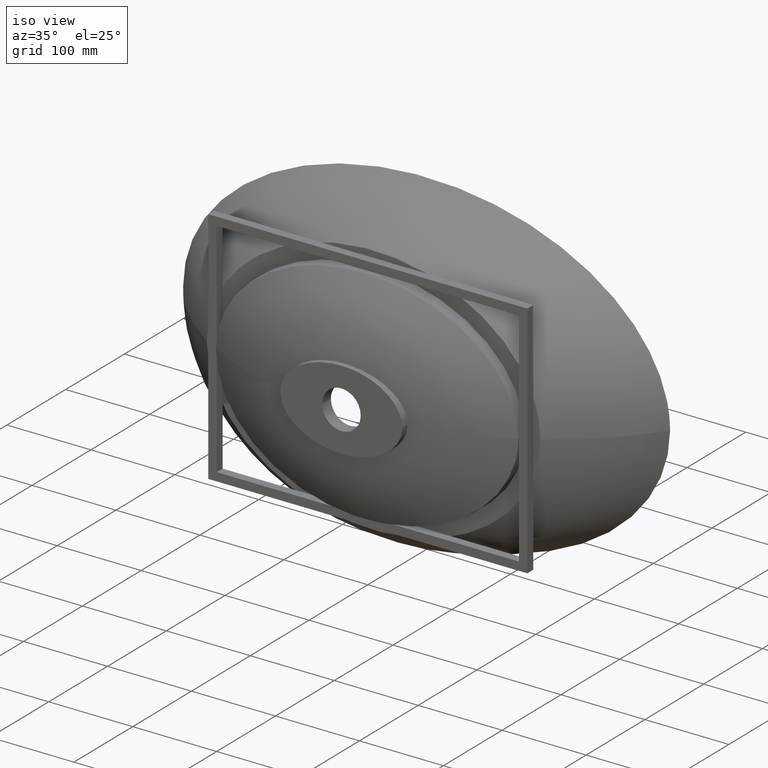
[diagram: clean part render]
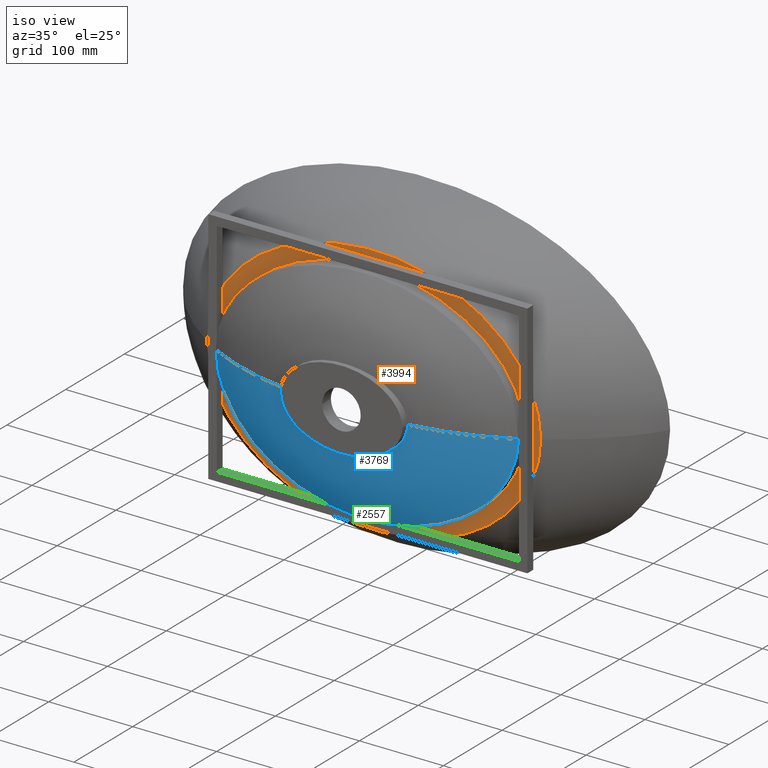
[diagram: same view with three faces highlighted in distinct colors, each labeled with its STEP entity id]
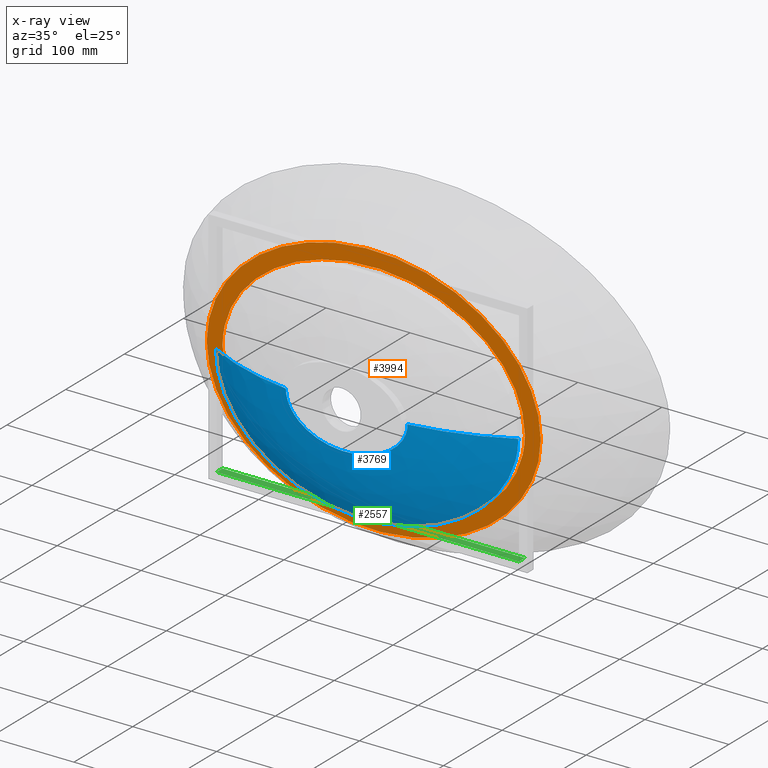
[diagram: x-ray of the same camera — body ghosted, the three highlighted faces saturated]
A machine part, iso view with three faces highlighted in distinct colors.
The next image is the same camera in x-ray (body ghosted, the three faces saturated) — at least one of them is partly hidden behind the body in this view.
Their STEP definitions:

[orange] entity #3994 — the highlighted planar face has unit normal (-0, -1, 0).
#145 = CARTESIAN_POINT ( 'NONE',  ( 90.74366534924344300, -90.00000000000004300, 115.9335179656755200 ) ) ;
#177 = VERTEX_POINT ( 'NONE', #3792 ) ;
#296 = CARTESIAN_POINT ( 'NONE',  ( 198.8502713291749700, -90.00000000000007100, -13.11443661640307200 ) ) ;
#309 = CARTESIAN_POINT ( 'NONE',  ( -100.1942375638007800, -90.00000000000007100, -131.6524531759836200 ) ) ;
#318 = EDGE_LOOP ( 'NONE', ( #459, #3659 ) ) ;
#342 = FACE_OUTER_BOUND ( 'NONE', #1409, .T. ) ;
#373 = EDGE_CURVE ( 'NONE', #1512, #177, #2418, .T. ) ;
#459 = ORIENTED_EDGE ( 'NONE', *, *, #1199, .F. ) ;
#461 = CARTESIAN_POINT ( 'NONE',  ( -90.74366534921649900, -90.00000000000005700, 115.9335179657776400 ) ) ;
#633 = CARTESIAN_POINT ( 'NONE',  ( 4.342727376950022200E-013, -90.00000000000007100, -152.3761271102559400 ) ) ;
#764 = ORIENTED_EDGE ( 'NONE', *, *, #3469, .T. ) ;
#793 = CARTESIAN_POINT ( 'NONE',  ( -179.2000957537033500, -90.00000000000002800, 15.59531744004093700 ) ) ;
#823 = CARTESIAN_POINT ( 'NONE',  ( 179.9999999999999400, -89.99999999999994300, -7.299477223001792000E-010 ) ) ;
#945 = CARTESIAN_POINT ( 'NONE',  ( 100.1942375637942600, -90.00000000000009900, -131.6524531761076000 ) ) ;
#1174 = CARTESIAN_POINT ( 'NONE',  ( 198.8502713292925000, -90.00000000000005700, -8.370892008575156100E-010 ) ) ;
#1199 = EDGE_CURVE ( 'NONE', #2915, #3721, #2828, .T. ) ;
#1272 = CARTESIAN_POINT ( 'NONE',  ( -128.7159219635021800, -90.00000000000002800, 94.49894374011435600 ) ) ;
#1401 = CARTESIAN_POINT ( 'NONE',  ( 175.7622561033006700, -89.99999999999992900, 34.68732427907950500 ) ) ;
#1409 = EDGE_LOOP ( 'NONE', ( #764, #2176 ) ) ;
#1422 = CARTESIAN_POINT ( 'NONE',  ( -198.8502713292928100, -90.00000000000000000, -1.967165492335285300 ) ) ;
#1512 = VERTEX_POINT ( 'NONE', #1174 ) ;
#1560 = CARTESIAN_POINT ( 'NONE',  ( 198.8502713292925000, -90.00000000000005700, -8.370892008575156100E-010 ) ) ;
#1580 = CARTESIAN_POINT ( 'NONE',  ( -198.7798634258439000, -90.00000000000001400, -4.590052815448874700 ) ) ;
#1731 = CARTESIAN_POINT ( 'NONE',  ( 179.9999999999999400, -89.99999999999994300, -7.299477223001792000E-010 ) ) ;
#1748 = CARTESIAN_POINT ( 'NONE',  ( 1.070667625548282000E-011, -90.00000000000008500, 134.0853951073148100 ) ) ;
#1784 = B_SPLINE_CURVE_WITH_KNOTS ( 'NONE', 3,
 ( #3313, #1422, #1580, #3845, #1904, #4203, #2229, #309, #2533, #633, #2830, #945, #3133, #4185, #2213, #296, #1560 ),
 .UNSPECIFIED., .F., .F.,
 ( 4, 1, 1, 1, 1, 1, 1, 1, 1, 1, 1, 1, 1, 1, 4 ),
 ( 0.0000000000000000000, 0.006249999999973944800, 0.008333333333298444500, 0.04166666666649233200, 0.08333333333298477400, 0.1249999999994772200, 0.1666666666659694400, 0.2083333333324619000, 0.2499999999989542300, 0.2916666666654465500, 0.3333333333319389900, 0.3749999999984313700, 0.4166666666649236900, 0.4583333333314161300, 0.5000000000000000000 ),
 .UNSPECIFIED. ) ;
#1904 = CARTESIAN_POINT ( 'NONE',  ( -192.8273946822161000, -90.00000000000000000, -41.75737275034331500 ) ) ;
#1954 = CARTESIAN_POINT ( 'NONE',  ( -180.0000000000000000, -90.00000000000002800, -7.480994990149980600E-015 ) ) ;
#1959 = B_SPLINE_CURVE_WITH_KNOTS ( 'NONE', 3,
 ( #1731, #4016, #1401, #3291, #2385, #145, #2082, #1748, #2248, #461, #1272, #3146, #3512, #793, #2676, #2971, #1954 ),
 .UNSPECIFIED., .F., .F.,
 ( 4, 1, 1, 1, 1, 1, 1, 1, 1, 1, 1, 1, 1, 1, 4 ),
 ( 0.4999999999999605900, 0.5416666666647134100, 0.5833333333315574600, 0.6249999999984017200, 0.6666666666652461000, 0.7083333333320902500, 0.7499999999999084100, 0.7916666666657787800, 0.8333333333326230500, 0.8749999999994672000, 0.9166666666663114700, 0.9583333333331558500, 0.9916666666666311700, 0.9937499999999733800, 1.000000000000000000 ),
 .UNSPECIFIED. ) ;
#2082 = CARTESIAN_POINT ( 'NONE',  ( 47.33615572003558500, -90.00000000000005700, 129.3292097853542700 ) ) ;
#2084 = CARTESIAN_POINT ( 'NONE',  ( -180.0000000000000000, -90.00000000000002800, -7.480994990149980600E-015 ) ) ;
#2176 = ORIENTED_EDGE ( 'NONE', *, *, #373, .T. ) ;
#2213 = CARTESIAN_POINT ( 'NONE',  ( 194.1564110990160000, -90.00000000000009900, -39.34330984747703000 ) ) ;
#2229 = CARTESIAN_POINT ( 'NONE',  ( -142.1354551725618500, -90.00000000000005700, -107.2656799598285700 ) ) ;
#2248 = CARTESIAN_POINT ( 'NONE',  ( -47.33615572001483700, -90.00000000000005700, 129.3292097853867200 ) ) ;
#2385 = CARTESIAN_POINT ( 'NONE',  ( 128.7159219635233600, -90.00000000000001400, 94.49894373997693700 ) ) ;
#2418 = B_SPLINE_CURVE_WITH_KNOTS ( 'NONE', 3,
 ( #3537, #3634, #3696, #3584, #3580, #3354, #3297, #3171, #3164, #3163, #3174, #3177, #3348, #3240, #3217, #3235, #3231 ),
 .UNSPECIFIED., .F., .F.,
 ( 4, 1, 1, 1, 1, 1, 1, 1, 1, 1, 1, 1, 1, 1, 4 ),
 ( 0.5000000000000000000, 0.5416666666647495000, 0.5833333333315903200, 0.6249999999984313700, 0.6666666666652724100, 0.7083333333321131200, 0.7499999999999280600, 0.7916666666657952200, 0.8333333333326362600, 0.8749999999994770800, 0.9166666666663180200, 0.9583333333331590700, 0.9916666666666318400, 0.9937499999999739300, 1.000000000000000000 ),
 .UNSPECIFIED. ) ;
#2533 = CARTESIAN_POINT ( 'NONE',  ( -52.25560404685497700, -90.00000000000007100, -146.9359933863194400 ) ) ;
#2566 = CARTESIAN_POINT ( 'NONE',  ( 179.9999999999999400, -89.99999999999994300, -7.299477223001792000E-010 ) ) ;
#2571 = CARTESIAN_POINT ( 'NONE',  ( 179.9999999998897200, -89.99999999999995700, -11.56244142729774500 ) ) ;
#2572 = CARTESIAN_POINT ( 'NONE',  ( 175.7622561026873900, -89.99999999999998600, -34.68732428039297100 ) ) ;
#2573 = DIRECTION ( 'NONE',  ( -1.000000000000000000, 1.472423135496076200E-015, -1.322880160797255900E-016 ) ) ;
#2577 = CARTESIAN_POINT ( 'NONE',  ( 157.7458273935322400, -89.99999999999997200, -66.57895139103656800 ) ) ;
#2580 = CARTESIAN_POINT ( 'NONE',  ( 128.7159219635056500, -90.00000000000000000, -94.49894374019133600 ) ) ;
#2581 = DIRECTION ( 'NONE',  ( -1.472423135496076200E-015, -1.000000000000000000, 7.069086911266522500E-029 ) ) ;
#2582 = PLANE ( 'NONE',  #3885 ) ;
#2583 = CARTESIAN_POINT ( 'NONE',  ( 90.74366534922495500, -89.99999999999998600, -115.9335179658108100 ) ) ;
#2584 = CARTESIAN_POINT ( 'NONE',  ( 47.33615572002290900, -90.00000000000001400, -129.3292097854009100 ) ) ;
#2589 = CARTESIAN_POINT ( 'NONE',  ( 1.864127346913646000E-013, -90.00000000000000000, -134.0853951073098600 ) ) ;
#2592 = CARTESIAN_POINT ( 'NONE',  ( -47.33615572002373300, -90.00000000000002800, -129.3292097853594700 ) ) ;
#2594 = CARTESIAN_POINT ( 'NONE',  ( -90.74366534922798200, -90.00000000000002800, -115.9335179657298600 ) ) ;
#2595 = CARTESIAN_POINT ( 'NONE',  ( -128.7159219635110200, -90.00000000000000000, -94.49894374007504900 ) ) ;
#2598 = CARTESIAN_POINT ( 'NONE',  ( -180.0000000000000000, -90.00000000000002800, -7.480994990149980600E-015 ) ) ;
#2601 = CARTESIAN_POINT ( 'NONE',  ( -157.7458273935386900, -90.00000000000000000, -66.57895139089103500 ) ) ;
#2606 = CARTESIAN_POINT ( 'NONE',  ( -174.5611608556976400, -90.00000000000000000, -36.81343275381481600 ) ) ;
#2607 = CARTESIAN_POINT ( 'NONE',  ( -179.2000957537047200, -90.00000000000001400, -15.59531744003995300 ) ) ;
#2611 = CARTESIAN_POINT ( 'NONE',  ( -180.0000000000000000, -90.00000000000002800, -7.480994990149980600E-015 ) ) ;
#2614 = CARTESIAN_POINT ( 'NONE',  ( -179.9364338415451000, -90.00000000000002800, -4.046854499303073300 ) ) ;
#2628 = CARTESIAN_POINT ( 'NONE',  ( -180.0000000000000900, -90.00000000000002800, -1.734366213987071200 ) ) ;
#2662 = FACE_BOUND ( 'NONE', #318, .T. ) ;
#2676 = CARTESIAN_POINT ( 'NONE',  ( -179.9364338415447300, -90.00000000000002800, 4.046854499303111500 ) ) ;
#2828 = B_SPLINE_CURVE_WITH_KNOTS ( 'NONE', 3,
 ( #2611, #2628, #2614, #2607, #2606, #2601, #2595, #2594, #2592, #2589, #2584, #2583, #2580, #2577, #2572, #2571, #2566 ),
 .UNSPECIFIED., .F., .F.,
 ( 4, 1, 1, 1, 1, 1, 1, 1, 1, 1, 1, 1, 1, 1, 4 ),
 ( 0.0000000000000000000, 0.006249999999973452100, 0.008333333333297787000, 0.04166666666648904900, 0.08333333333297821000, 0.1249999999994673700, 0.1666666666659563100, 0.2083333333324454700, 0.2499999999989345200, 0.2916666666654235700, 0.3333333333319127300, 0.3749999999984018300, 0.4166666666648908300, 0.4583333333313799900, 0.4999999999999605900 ),
 .UNSPECIFIED. ) ;
#2830 = CARTESIAN_POINT ( 'NONE',  ( 52.25560404685331400, -90.00000000000009900, -146.9359933863829000 ) ) ;
#2915 = VERTEX_POINT ( 'NONE', #2084 ) ;
#2971 = CARTESIAN_POINT ( 'NONE',  ( -179.9999999999999400, -90.00000000000002800, 1.734366213987025700 ) ) ;
#3133 = CARTESIAN_POINT ( 'NONE',  ( 142.1354551725503100, -90.00000000000011400, -107.2656799600066900 ) ) ;
#3146 = CARTESIAN_POINT ( 'NONE',  ( -157.7458273935326900, -90.00000000000004300, 66.57895139091354500 ) ) ;
#3163 = CARTESIAN_POINT ( 'NONE',  ( -100.1942375637760700, -90.00000000000000000, 131.6524531760568900 ) ) ;
#3164 = CARTESIAN_POINT ( 'NONE',  ( -52.25560404683584200, -90.00000000000001400, 146.9359933863612800 ) ) ;
#3171 = CARTESIAN_POINT ( 'NONE',  ( 2.312147518967068700E-011, -90.00000000000005700, 152.3761271102635800 ) ) ;
#3174 = CARTESIAN_POINT ( 'NONE',  ( -142.1354551725428300, -89.99999999999998600, 107.2656799598889300 ) ) ;
#3177 = CARTESIAN_POINT ( 'NONE',  ( -174.2211648423273400, -90.00000000000001400, 75.55425340137570300 ) ) ;
#3217 = CARTESIAN_POINT ( 'NONE',  ( -198.7798634258431300, -90.00000000000000000, 4.590052815448948400 ) ) ;
#3231 = CARTESIAN_POINT ( 'NONE',  ( -198.8502713292926700, -90.00000000000000000, -9.974659986866640800E-015 ) ) ;
#3235 = CARTESIAN_POINT ( 'NONE',  ( -198.8502713292925300, -90.00000000000000000, 1.967165492335230600 ) ) ;
#3240 = CARTESIAN_POINT ( 'NONE',  ( -197.9643735094901400, -90.00000000000001400, 17.68882759955771200 ) ) ;
#3291 = CARTESIAN_POINT ( 'NONE',  ( 157.7458273935470500, -89.99999999999998600, 66.57895139075144200 ) ) ;
#3297 = CARTESIAN_POINT ( 'NONE',  ( 52.25560404688068400, -90.00000000000005700, 146.9359933863115400 ) ) ;
#3313 = CARTESIAN_POINT ( 'NONE',  ( -198.8502713292926700, -90.00000000000000000, -9.974659986866640800E-015 ) ) ;
#3348 = CARTESIAN_POINT ( 'NONE',  ( -192.8273946822091900, -90.00000000000000000, 41.75737275035364600 ) ) ;
#3354 = CARTESIAN_POINT ( 'NONE',  ( 100.1942375638341200, -90.00000000000005700, 131.6524531759004600 ) ) ;
#3423 = EDGE_CURVE ( 'NONE', #3721, #2915, #1959, .T. ) ;
#3469 = EDGE_CURVE ( 'NONE', #177, #1512, #1784, .T. ) ;
#3512 = CARTESIAN_POINT ( 'NONE',  ( -174.5611608556944800, -90.00000000000002800, 36.81343275382155900 ) ) ;
#3537 = CARTESIAN_POINT ( 'NONE',  ( 198.8502713292925000, -90.00000000000005700, -8.370892008575156100E-010 ) ) ;
#3580 = CARTESIAN_POINT ( 'NONE',  ( 142.1354551725884800, -90.00000000000004300, 107.2656799596783900 ) ) ;
#3584 = CARTESIAN_POINT ( 'NONE',  ( 174.2211648423582600, -90.00000000000004300, 75.55425340112741100 ) ) ;
#3634 = CARTESIAN_POINT ( 'NONE',  ( 198.8502713294099900, -90.00000000000005700, 13.11443661472892900 ) ) ;
#3659 = ORIENTED_EDGE ( 'NONE', *, *, #3423, .F. ) ;
#3696 = CARTESIAN_POINT ( 'NONE',  ( 194.1564110996812100, -90.00000000000002800, 39.34330984591894500 ) ) ;
#3721 = VERTEX_POINT ( 'NONE', #823 ) ;
#3792 = CARTESIAN_POINT ( 'NONE',  ( -198.8502713292926700, -90.00000000000000000, -9.974659986866640800E-015 ) ) ;
#3845 = CARTESIAN_POINT ( 'NONE',  ( -197.9643735094931000, -90.00000000000000000, -17.68882759955619800 ) ) ;
#3885 = AXIS2_PLACEMENT_3D ( 'NONE', #2598, #2581, #2573 ) ;
#3994 = ADVANCED_FACE ( 'NONE', ( #342, #2662 ), #2582, .T. ) ;
#4016 = CARTESIAN_POINT ( 'NONE',  ( 180.0000000001101300, -89.99999999999994300, 11.56244142585975400 ) ) ;
#4185 = CARTESIAN_POINT ( 'NONE',  ( 174.2211648423262900, -90.00000000000009900, -75.55425340156405400 ) ) ;
#4203 = CARTESIAN_POINT ( 'NONE',  ( -174.2211648423401900, -90.00000000000002800, -75.55425340134119900 ) ) ;

[blue] entity #3769 — the highlighted face is a freeform B-spline surface patch.
#4 = VERTEX_POINT ( 'NONE', #3772 ) ;
#14 = CARTESIAN_POINT ( 'NONE',  ( -21.60535148392922300, -138.2254856259216100, -53.88225570148242800 ) ) ;
#25 = CARTESIAN_POINT ( 'NONE',  ( -63.64938807459023500, -136.7659678258151800, -24.03620646583359700 ) ) ;
#28 = CARTESIAN_POINT ( 'NONE',  ( 88.15250290320129500, -132.5966441120052900, 35.44585711085374400 ) ) ;
#41 = CARTESIAN_POINT ( 'NONE',  ( 86.34983041536298700, -109.4724330613113900, 110.4652736398576800 ) ) ;
#49 = B_SPLINE_CURVE_WITH_KNOTS ( 'NONE', 3,
 ( #289, #283, #1568, #3427, #578, #25, #3480, #242, #3804, #3108, #3931, #3903, #1147, #3079, #191, #2900, #3664 ),
 .UNSPECIFIED., .F., .F.,
 ( 4, 1, 1, 1, 1, 1, 1, 1, 1, 1, 1, 1, 1, 1, 4 ),
 ( 0.0000000000000000000, 0.006249999999973827700, 0.008333333333298288300, 0.04166666666649154700, 0.08333333333298320600, 0.1249999999994748800, 0.1666666666659663000, 0.2083333333324579900, 0.2499999999989495300, 0.2916666666654410500, 0.3333333333319327100, 0.3749999999984243200, 0.4166666666649158600, 0.4583333333314075200, 0.4999999999999905600 ),
 .UNSPECIFIED. ) ;
#51 = CARTESIAN_POINT ( 'NONE',  ( 21.60535148391156200, -138.2254856259198200, 53.88225570148301100 ) ) ;
#55 = CARTESIAN_POINT ( 'NONE',  ( -41.38091649032791300, -137.5137336733139900, -48.38538487928600800 ) ) ;
#69 = CARTESIAN_POINT ( 'NONE',  ( 150.2856632549772700, -106.9341796959233600, -63.36830748782477900 ) ) ;
#109 = CARTESIAN_POINT ( 'NONE',  ( -179.9356681408749200, -101.1438888113056700, -4.034476564383267000 ) ) ;
#117 = CARTESIAN_POINT ( 'NONE',  ( 41.38091649030512500, -137.5137336733003500, 48.38538487929160700 ) ) ;
#124 = CARTESIAN_POINT ( 'NONE',  ( 45.00450705813410900, -110.4595315923392600, 123.3261866611201800 ) ) ;
#173 = CARTESIAN_POINT ( 'NONE',  ( 5.996294596105164400E-015, -136.1064892676519100, -71.25318917190452300 ) ) ;
#191 = CARTESIAN_POINT ( 'NONE',  ( 70.82446541845511900, -136.1580643484143700, -12.55627765287975200 ) ) ;
#205 = CARTESIAN_POINT ( 'NONE',  ( 86.34983041527144100, -109.4724330613621200, -110.4652736400591700 ) ) ;
#218 = CARTESIAN_POINT ( 'NONE',  ( 19.16198527001705500, -138.9370516737609500, -46.40284726502926600 ) ) ;
#231 = CARTESIAN_POINT ( 'NONE',  ( 70.82446541857571300, -136.1580643484041700, -12.55627765268680400 ) ) ;
#242 = CARTESIAN_POINT ( 'NONE',  ( -36.68287104352781100, -138.3291481963266000, -41.70352527308491400 ) ) ;
#255 = CARTESIAN_POINT ( 'NONE',  ( -21.60535148394230700, -138.2254856259324100, 53.88225570147972100 ) ) ;
#261 = CARTESIAN_POINT ( 'NONE',  ( -81.89255720789920200, -134.7684047132744900, -3.198396408832238100E-015 ) ) ;
#276 = CARTESIAN_POINT ( 'NONE',  ( 70.82446541857741800, -136.1580643483956100, 12.55627765275476000 ) ) ;
#283 = CARTESIAN_POINT ( 'NONE',  ( -72.49999999999988600, -135.9843776405653600, -0.6278138826359834800 ) ) ;
#289 = CARTESIAN_POINT ( 'NONE',  ( -72.50000000000007100, -135.9843776405655800, -4.174178364069192100E-015 ) ) ;
#335 = CARTESIAN_POINT ( 'NONE',  ( 98.20338191811966100, -131.7191828231378300, -18.47949401132816800 ) ) ;
#346 = CARTESIAN_POINT ( 'NONE',  ( -2.435050329329200600E-011, -139.1975817355071600, 48.04857636748078400 ) ) ;
#360 = CARTESIAN_POINT ( 'NONE',  ( -127.9985263868448900, -123.9565087073186600, -6.071532165918824800E-015 ) ) ;
#376 = CARTESIAN_POINT ( 'NONE',  ( -154.5669731667401000, -113.9511353889949800, -3.457331393691176500 ) ) ;
#380 = CARTESIAN_POINT ( 'NONE',  ( 122.5378988818123400, -108.2033063785809200, 89.97936883418150000 ) ) ;
#389 = CARTESIAN_POINT ( 'NONE',  ( -166.4376370003652400, -106.0128877336269100, 35.01273231288230600 ) ) ;
#400 = CARTESIAN_POINT ( 'NONE',  ( -63.64938807460386300, -136.7659678258306400, 24.03620646582685800 ) ) ;
#411 = CARTESIAN_POINT ( 'NONE',  ( -157.5619450238705800, -102.3704272196283800, 66.43164022772515400 ) ) ;
#435 = CARTESIAN_POINT ( 'NONE',  ( -135.3730003061997100, -115.2689547828959200, -56.92026854610269700 ) ) ;
#449 = CARTESIAN_POINT ( 'NONE',  ( -86.34983041522961900, -109.4724330613620100, 110.4652736400097800 ) ) ;
#465 = CARTESIAN_POINT ( 'NONE',  ( 47.17970821334883200, -105.7888731736392000, 129.2945919006047000 ) ) ;
#485 = CARTESIAN_POINT ( 'NONE',  ( -179.1908812512578500, -101.1903796762784100, -15.54789838681193900 ) ) ;
#501 = CARTESIAN_POINT ( 'NONE',  ( -71.94086093412588000, -133.7248086263591100, 50.29314149079644400 ) ) ;
#507 = EDGE_CURVE ( 'NONE', #1509, #4, #3990, .T. ) ;
#529 = CARTESIAN_POINT ( 'NONE',  ( -171.6801030269172400, -105.6650530131687200, -1.105886215935214500E-014 ) ) ;
#557 = CARTESIAN_POINT ( 'NONE',  ( -70.34612692898360800, -136.1985912468998400, 13.32160624025910200 ) ) ;
#578 = CARTESIAN_POINT ( 'NONE',  ( -70.34612692897626100, -136.1985912468909400, -13.32160624026112900 ) ) ;
#641 = CARTESIAN_POINT ( 'NONE',  ( -79.44466684816913500, -135.0192125441876700, -15.42646999813209300 ) ) ;
#668 = CARTESIAN_POINT ( 'NONE',  ( -36.68287104352781100, -138.3291481963266000, -41.70352527308491400 ) ) ;
#674 = CARTESIAN_POINT ( 'NONE',  ( -100.5298655502836000, -131.4722401461128800, 2.155940967984629100 ) ) ;
#708 = CARTESIAN_POINT ( 'NONE',  ( -36.68287104355391600, -138.3291481963461800, 41.70352527307059600 ) ) ;
#711 = CARTESIAN_POINT ( 'NONE',  ( -112.1113420490171300, -125.2498409302742700, 46.47062048620694700 ) ) ;
#724 = CARTESIAN_POINT ( 'NONE',  ( -72.47486698127835300, -135.9869829411826200, -1.464899059483953500 ) ) ;
#738 = CARTESIAN_POINT ( 'NONE',  ( -2.903546014045522800E-013, -138.5305221770429400, -55.81602085519583800 ) ) ;
#753 = CARTESIAN_POINT ( 'NONE',  ( 157.5619450238681100, -102.3704272196435200, -66.43164022791916100 ) ) ;
#766 = CARTESIAN_POINT ( 'NONE',  ( 124.9677936145221800, -124.2439158679646000, 24.20476834532659200 ) ) ;
#782 = CARTESIAN_POINT ( 'NONE',  ( 77.79332171327921200, -117.9134084161943700, -99.20889853072530700 ) ) ;
#810 = CARTESIAN_POINT ( 'NONE',  ( -170.9087083654350200, -105.7172282212332800, -14.83126853532561300 ) ) ;
#828 = CARTESIAN_POINT ( 'NONE',  ( -171.6187717226740100, -105.6692834354452700, 3.848522310046162100 ) ) ;
#841 = CARTESIAN_POINT ( 'NONE',  ( -77.79332171329144800, -117.9134084161610500, -99.20889853062269000 ) ) ;
#851 = CARTESIAN_POINT ( 'NONE',  ( -154.6221291195640200, -113.9467279662737000, -1.593777193553691500E-014 ) ) ;
#865 = CARTESIAN_POINT ( 'NONE',  ( -81.53271891947571200, -134.8060258879144700, 6.536309777860259000 ) ) ;
#904 = CARTESIAN_POINT ( 'NONE',  ( -79.44466684817392400, -135.0192125441980400, 15.42646999813140400 ) ) ;
#920 = CARTESIAN_POINT ( 'NONE',  ( 26.46398956459173800, -135.7304344295595200, -68.74736783313875300 ) ) ;
#932 = CARTESIAN_POINT ( 'NONE',  ( 58.67074392697237100, -136.5986240199935400, -39.49986506585607800 ) ) ;
#942 = CARTESIAN_POINT ( 'NONE',  ( 71.84934949014086700, -135.6835143666455700, -27.85504080437835800 ) ) ;
#966 = CARTESIAN_POINT ( 'NONE',  ( -72.18347257089364200, -136.0165096815169600, 5.644943199525521000 ) ) ;
#978 = CARTESIAN_POINT ( 'NONE',  ( -100.5652942350373800, -131.4684795977307800, -0.9239747005648708500 ) ) ;
#1004 = CARTESIAN_POINT ( 'NONE',  ( -128.4670743710578300, -103.6010677630857800, 94.33018502803619800 ) ) ;
#1022 = CARTESIAN_POINT ( 'NONE',  ( -179.9999999999999700, -101.1397866761616100, -6.071532165918824800E-015 ) ) ;
#1024 = CARTESIAN_POINT ( 'NONE',  ( -64.45463552820265800, -127.8365053761614500, 80.94689134798352400 ) ) ;
#1061 = CARTESIAN_POINT ( 'NONE',  ( 90.52644380357804700, -104.8317083064899300, 115.8088161287509100 ) ) ;
#1089 = CARTESIAN_POINT ( 'NONE',  ( -171.6801030269169000, -105.6650530131690600, 1.649366704305464700 ) ) ;
#1120 = CARTESIAN_POINT ( 'NONE',  ( -150.2856632550093300, -106.9341796958825900, -63.36830748760800700 ) ) ;
#1131 = CARTESIAN_POINT ( 'NONE',  ( -97.53332331712510900, -131.7776802423995500, 19.61058488460453800 ) ) ;
#1147 = CARTESIAN_POINT ( 'NONE',  ( 51.99666549677751000, -137.5475580110951900, -34.06976087436132200 ) ) ;
#1149 = VERTEX_POINT ( 'NONE', #2635 ) ;
#1151 = CARTESIAN_POINT ( 'NONE',  ( -77.79332171324549000, -117.9134084161944700, 99.20889853068348400 ) ) ;
#1163 = CARTESIAN_POINT ( 'NONE',  ( -33.60797833836107900, -128.8424304384200000, -90.32211386168090400 ) ) ;
#1170 = CARTESIAN_POINT ( 'NONE',  ( -174.5012584337427200, -101.4770733436339900, 36.70458853025227300 ) ) ;
#1173 = CARTESIAN_POINT ( 'NONE',  ( 135.3730003061736800, -115.2689547829383800, -56.92026854628715400 ) ) ;
#1185 = CARTESIAN_POINT ( 'NONE',  ( -88.15250290320089700, -132.5966441120270900, -35.44585711089389700 ) ) ;
#1191 = CARTESIAN_POINT ( 'NONE',  ( -81.89255720789920200, -134.7684047132744900, -3.198396408832238100E-015 ) ) ;
#1203 = CARTESIAN_POINT ( 'NONE',  ( -81.86397669252950500, -134.7714550787850700, -1.696183409729884200 ) ) ;
#1235 = CARTESIAN_POINT ( 'NONE',  ( 79.98718951660174500, -134.9717624140133100, 14.53871494055374200 ) ) ;
#1250 = CARTESIAN_POINT ( 'NONE',  ( 71.84934949011896800, -135.6835143665985600, 27.85504080440743700 ) ) ;
#1295 = CARTESIAN_POINT ( 'NONE',  ( -179.9999999999999700, -101.1397866761616100, -6.071532165918824800E-015 ) ) ;
#1327 = CARTESIAN_POINT ( 'NONE',  ( -71.94086093412657600, -133.7248086263307100, -50.29314149078489000 ) ) ;
#1335 = CARTESIAN_POINT ( 'NONE',  ( 7.528016575679785500E-013, -119.3825493235422200, -114.8573587976452300 ) ) ;
#1344 = CARTESIAN_POINT ( 'NONE',  ( 112.1113420490162400, -125.2498409302903200, -46.47062048630795100 ) ) ;
#1357 = CARTESIAN_POINT ( 'NONE',  ( 73.33776729071166800, -135.8975342866483800, 3.564370162083350400E-011 ) ) ;
#1362 = ORIENTED_EDGE ( 'NONE', *, *, #2346, .T. ) ;
#1372 = CARTESIAN_POINT ( 'NONE',  ( 5.312180101139441200E-011, -110.8825738199245000, 127.9110200387975900 ) ) ;
#1390 = CARTESIAN_POINT ( 'NONE',  ( -19.16198527001537500, -138.9370516737502300, -46.40284726504175000 ) ) ;
#1395 = CARTESIAN_POINT ( 'NONE',  ( 2.341912223038616900E-011, -129.2735411794084300, 93.65503709939046900 ) ) ;
#1412 = CARTESIAN_POINT ( 'NONE',  ( -174.5012584337600000, -101.4770733436199600, -36.70458853024163700 ) ) ;
#1444 = CARTESIAN_POINT ( 'NONE',  ( -90.52644380349538300, -104.8317083065081200, -115.8088161288365800 ) ) ;
#1456 = CARTESIAN_POINT ( 'NONE',  ( 91.44612436927174300, -126.5431731531628800, 65.96668315028516400 ) ) ;
#1484 = CARTESIAN_POINT ( 'NONE',  ( 4.287692068153241800E-011, -119.3825493235437300, 114.8573587976518000 ) ) ;
#1509 = VERTEX_POINT ( 'NONE', #2663 ) ;
#1527 = CARTESIAN_POINT ( 'NONE',  ( -100.5298655502836200, -131.4722401461114600, -2.155940967984647300 ) ) ;
#1538 = CARTESIAN_POINT ( 'NONE',  ( -91.44612436924465700, -126.5431731531875800, -65.96668315036576800 ) ) ;
#1568 = CARTESIAN_POINT ( 'NONE',  ( -72.47486698127835300, -135.9869829411826200, -1.464899059483953500 ) ) ;
#1591 = CARTESIAN_POINT ( 'NONE',  ( 21.60535148393029200, -138.2254856259341400, -53.88225570147819400 ) ) ;
#1616 = CARTESIAN_POINT ( 'NONE',  ( -72.50000000000022700, -135.9843776405657800, 0.6278138826359641600 ) ) ;
#1632 = CARTESIAN_POINT ( 'NONE',  ( -26.46398956459119100, -135.7304344295574500, 68.74736783313507300 ) ) ;
#1646 = CARTESIAN_POINT ( 'NONE',  ( 150.2856632550509300, -106.9341796958582200, 63.36830748740003800 ) ) ;
#1656 = CARTESIAN_POINT ( 'NONE',  ( -127.9985263868448900, -123.9565087073186600, -6.071532165918824800E-015 ) ) ;
#1659 = ORIENTED_EDGE ( 'NONE', *, *, #507, .T. ) ;
#1660 = CARTESIAN_POINT ( 'NONE',  ( -110.3891451521824100, -116.5911815995605100, 80.81863150231049500 ) ) ;
#1672 = CARTESIAN_POINT ( 'NONE',  ( -72.47486698127914900, -135.9869829411835800, 1.464899059483908600 ) ) ;
#1676 = CARTESIAN_POINT ( 'NONE',  ( 157.5619450239476900, -102.3704272195802900, 66.43164022746951500 ) ) ;
#1700 = CARTESIAN_POINT ( 'NONE',  ( -157.5619450239026400, -102.3704272196040300, -66.43164022768967000 ) ) ;
#1727 = CARTESIAN_POINT ( 'NONE',  ( -124.1106968434843300, -124.3109775387993100, 25.68915848814413000 ) ) ;
#1789 = CARTESIAN_POINT ( 'NONE',  ( 129.5138927730060300, -123.8128051269922500, -9.726918454458756300E-011 ) ) ;
#1835 = CARTESIAN_POINT ( 'NONE',  ( 41.38091649033233200, -137.5137336733369900, -48.38538487927775100 ) ) ;
#1847 = CARTESIAN_POINT ( 'NONE',  ( -72.50000000000007100, -135.9843776405655800, -4.174178364069192100E-015 ) ) ;
#1865 = CARTESIAN_POINT ( 'NONE',  ( -150.2856632549796800, -106.9341796959076700, 63.36830748764153800 ) ) ;
#1899 = CARTESIAN_POINT ( 'NONE',  ( -71.84934949014029800, -135.6835143666343100, 27.85504080439091000 ) ) ;
#1935 = CARTESIAN_POINT ( 'NONE',  ( -127.9530653952604400, -123.9608198147276700, -2.823889640299342800 ) ) ;
#1956 = CARTESIAN_POINT ( 'NONE',  ( -41.38091649034487300, -137.5137336733369000, 48.38538487928117600 ) ) ;
#1960 = CARTESIAN_POINT ( 'NONE',  ( 7.763714773465000500E-013, -136.1064892676530200, 71.25318917190639900 ) ) ;
#1967 = EDGE_LOOP ( 'NONE', ( #2698, #3391, #1659, #1362 ) ) ;
#1971 = CARTESIAN_POINT ( 'NONE',  ( -50.72237948666273900, -134.8529731406366900, -61.66610846373546900 ) ) ;
#1974 = CARTESIAN_POINT ( 'NONE',  ( -100.5652942350373800, -131.4684795977311200, -1.306463617845032800E-014 ) ) ;
#2011 = CARTESIAN_POINT ( 'NONE',  ( 36.68287104349276700, -138.3291481963149700, 41.70352527310129900 ) ) ;
#2031 = CARTESIAN_POINT ( 'NONE',  ( 1.011712589639445900E-012, -106.1990866881323500, -134.1027040496771300 ) ) ;
#2060 = CARTESIAN_POINT ( 'NONE',  ( -154.5669731667386800, -113.9511353889966500, 3.457331393691225300 ) ) ;
#2118 = CARTESIAN_POINT ( 'NONE',  ( -166.4376370003811900, -106.0128877336124700, -35.01273231287225900 ) ) ;
#2130 = CARTESIAN_POINT ( 'NONE',  ( -179.9999999999995700, -101.1397866761619500, 1.729061384735692800 ) ) ;
#2139 = CARTESIAN_POINT ( 'NONE',  ( -86.34983041528657600, -109.4724330613301200, -110.4652736399385600 ) ) ;
#2152 = CARTESIAN_POINT ( 'NONE',  ( 51.99666549673730000, -137.5475580110551400, 34.06976087442580300 ) ) ;
#2165 = CARTESIAN_POINT ( 'NONE',  ( -88.15250290320047100, -132.5966441120494300, 35.44585711090049100 ) ) ;
#2179 = CARTESIAN_POINT ( 'NONE',  ( 122.5378988817245600, -108.2033063786458200, -89.97936883450087500 ) ) ;
#2183 = CARTESIAN_POINT ( 'NONE',  ( 179.9999999999998900, -101.1397866761614900, -7.627155560823910400E-010 ) ) ;
#2187 = CARTESIAN_POINT ( 'NONE',  ( 171.6801030269170400, -105.6650530131687700, -7.258596051756534700E-010 ) ) ;
#2193 = CARTESIAN_POINT ( 'NONE',  ( 154.6221291195636800, -113.9467279662736800, -6.438467079381120400E-010 ) ) ;
#2198 = CARTESIAN_POINT ( 'NONE',  ( 127.9985263868450600, -123.9565087073186900, -5.007881938995198500E-010 ) ) ;
#2201 = CARTESIAN_POINT ( 'NONE',  ( 100.5652942350370700, -131.4684795977310000, -3.428563268215590500E-010 ) ) ;
#2206 = CARTESIAN_POINT ( 'NONE',  ( 72.49999999999997200, -135.9843776405655300, -1.750156962517628700E-010 ) ) ;
#2212 = CARTESIAN_POINT ( 'NONE',  ( 81.89255720789911700, -134.7684047132744400, -2.313659916285402400E-010 ) ) ;
#2219 = CARTESIAN_POINT ( 'NONE',  ( -97.53332331712533700, -131.7776802423866800, -19.61058488460258400 ) ) ;
#2239 = CARTESIAN_POINT ( 'NONE',  ( 64.45463552822114700, -127.8365053761616700, -80.94689134801095100 ) ) ;
#2254 = CARTESIAN_POINT ( 'NONE',  ( 71.94086093412596500, -133.7248086263668900, -50.29314149081840700 ) ) ;
#2264 = CARTESIAN_POINT ( 'NONE',  ( 150.9450655979245500, -114.2405561477542800, -29.63426908891928200 ) ) ;
#2267 = CARTESIAN_POINT ( 'NONE',  ( 40.54955975735517600, -118.9418070513421500, -110.7466292595264000 ) ) ;
#2268 = CARTESIAN_POINT ( 'NONE',  ( -127.9985263868450600, -123.9565087073183100, -1.210238417271177500 ) ) ;
#2278 = CARTESIAN_POINT ( 'NONE',  ( 110.3891451522671500, -116.5911815995020800, 80.81863150213624200 ) ) ;
#2283 = CARTESIAN_POINT ( 'NONE',  ( -72.18347257089053000, -136.0165096815131300, -5.644943199525849700 ) ) ;
#2291 = CARTESIAN_POINT ( 'NONE',  ( 182.1443953041980400, -101.0030488380003800, -1.869570984973563100E-010 ) ) ;
#2300 = CARTESIAN_POINT ( 'NONE',  ( 51.99666549677751000, -137.5475580110951900, -34.06976087436132200 ) ) ;
#2302 = CARTESIAN_POINT ( 'NONE',  ( 45.00450705807121900, -110.4595315923590400, -123.3261866611896500 ) ) ;
#2317 = CARTESIAN_POINT ( 'NONE',  ( 167.5913494107635700, -105.9470811648915900, -32.98733408627130400 ) ) ;
#2346 = EDGE_CURVE ( 'NONE', #4, #3724, #2958, .T. ) ;
#2349 = CARTESIAN_POINT ( 'NONE',  ( -135.3730003061757500, -115.2689547829221800, 56.92026854613128300 ) ) ;
#2363 = CARTESIAN_POINT ( 'NONE',  ( -45.00450705803103800, -110.4595315923566700, 123.3261866611685300 ) ) ;
#2401 = CARTESIAN_POINT ( 'NONE',  ( -51.99666549678560300, -137.5475580110896800, 34.06976087438447100 ) ) ;
#2434 = CARTESIAN_POINT ( 'NONE',  ( -171.6801030269176100, -105.6650530131683600, -1.649366704305516200 ) ) ;
#2446 = CARTESIAN_POINT ( 'NONE',  ( 33.60797833835938100, -128.8424304384377900, -90.32211386171492500 ) ) ;
#2458 = CARTESIAN_POINT ( 'NONE',  ( 19.16198526998823900, -138.9370516737487000, 46.40284726504334900 ) ) ;
#2482 = CARTESIAN_POINT ( 'NONE',  ( -1.582280094501853700E-011, -138.5305221770438200, 55.81602085519544700 ) ) ;
#2498 = CARTESIAN_POINT ( 'NONE',  ( -70.34612692897626100, -136.1985912468909400, -13.32160624026112900 ) ) ;
#2530 = CARTESIAN_POINT ( 'NONE',  ( -58.67074392696466100, -136.5986240199641500, -39.49986506586794400 ) ) ;
#2535 = CARTESIAN_POINT ( 'NONE',  ( 179.9999999999998900, -101.1397866761614900, -7.627155560823910400E-010 ) ) ;
#2538 = CARTESIAN_POINT ( 'NONE',  ( 179.9999999998929400, -101.1397866761705700, -11.52707589899838100 ) ) ;
#2541 = CARTESIAN_POINT ( 'NONE',  ( 175.7112093913019400, -101.4132623525064500, -34.58122769541817800 ) ) ;
#2547 = CARTESIAN_POINT ( 'NONE',  ( 157.5619450238681100, -102.3704272196435200, -66.43164022791916100 ) ) ;
#2550 = CARTESIAN_POINT ( 'NONE',  ( 128.4670743710766500, -103.6010677630943200, -94.33018502815758700 ) ) ;
#2552 = CARTESIAN_POINT ( 'NONE',  ( 90.52644380347911100, -104.8317083065391400, -115.8088161289642700 ) ) ;
#2554 = CARTESIAN_POINT ( 'NONE',  ( 47.17970821328089700, -105.7888731736583900, -129.2945919006783100 ) ) ;
#2555 = CARTESIAN_POINT ( 'NONE',  ( -149.9069279117978200, -114.3091160567665400, 31.45333571927498500 ) ) ;
#2559 = CARTESIAN_POINT ( 'NONE',  ( 50.72237948666241900, -134.8529731406650600, -61.66610846375878900 ) ) ;
#2561 = CARTESIAN_POINT ( 'NONE',  ( 1.011712589639445900E-012, -106.1990866881323500, -134.1027040496771300 ) ) ;
#2563 = CARTESIAN_POINT ( 'NONE',  ( -47.17970821328502500, -105.7888731736414500, -129.2945919006129400 ) ) ;
#2567 = CARTESIAN_POINT ( 'NONE',  ( -90.52644380349538300, -104.8317083065081200, -115.8088161288365800 ) ) ;
#2570 = CARTESIAN_POINT ( 'NONE',  ( 101.7462503934958000, -131.3431279850306600, -3.417246715397505600E-011 ) ) ;
#2574 = CARTESIAN_POINT ( 'NONE',  ( -128.4670743711052100, -103.6010677630548000, -94.33018502797418100 ) ) ;
#2576 = CARTESIAN_POINT ( 'NONE',  ( -157.5619450239026400, -102.3704272196040300, -66.43164022768967000 ) ) ;
#2586 = CARTESIAN_POINT ( 'NONE',  ( -174.5012584337600000, -101.4770733436199600, -36.70458853024163700 ) ) ;
#2590 = CARTESIAN_POINT ( 'NONE',  ( -179.1908812512578500, -101.1903796762784100, -15.54789838681193900 ) ) ;
#2593 = CARTESIAN_POINT ( 'NONE',  ( 110.3891451521963200, -116.5911815995695900, -80.81863150240788200 ) ) ;
#2605 = CARTESIAN_POINT ( 'NONE',  ( -91.44612436922531600, -126.5431731532200000, 65.96668315039791300 ) ) ;
#2623 = CARTESIAN_POINT ( 'NONE',  ( -179.9356681408749200, -101.1438888113056700, -4.034476564383267000 ) ) ;
#2635 = CARTESIAN_POINT ( 'NONE',  ( 72.49999999999997200, -135.9843776405655300, -1.750156962517628700E-010 ) ) ;
#2647 = CARTESIAN_POINT ( 'NONE',  ( -81.86397669253005900, -134.7714550787862300, 1.696183409729856000 ) ) ;
#2649 = CARTESIAN_POINT ( 'NONE',  ( 112.1113420490487000, -125.2498409302238400, 46.47062048607393300 ) ) ;
#2656 = FACE_OUTER_BOUND ( 'NONE', #1967, .T. ) ;
#2663 = CARTESIAN_POINT ( 'NONE',  ( -72.50000000000007100, -135.9843776405655800, -4.174178364069192100E-015 ) ) ;
#2666 = CARTESIAN_POINT ( 'NONE',  ( -122.5378988817072400, -108.2033063786369400, 89.97936883438627800 ) ) ;
#2679 = CARTESIAN_POINT ( 'NONE',  ( 5.740810446090453600E-011, -106.1990866881335800, 134.1027040496849200 ) ) ;
#2688 = CARTESIAN_POINT ( 'NONE',  ( 63.64938807457104300, -136.7659678258001200, 24.03620646587558000 ) ) ;
#2698 = ORIENTED_EDGE ( 'NONE', *, *, #2843, .F. ) ;
#2710 = CARTESIAN_POINT ( 'NONE',  ( -180.0000000000003400, -101.1397866761612800, -1.729061384735735700 ) ) ;
#2718 = CARTESIAN_POINT ( 'NONE',  ( 135.3730003062331100, -115.2689547828705500, 56.92026854592574400 ) ) ;
#2734 = CARTESIAN_POINT ( 'NONE',  ( -171.6187717226757500, -105.6692834354436700, -3.848522310046087500 ) ) ;
#2747 = CARTESIAN_POINT ( 'NONE',  ( -64.45463552822775500, -127.8365053761290700, -80.94689134794452900 ) ) ;
#2752 = CARTESIAN_POINT ( 'NONE',  ( -40.54955975732274700, -118.9418070513399100, 110.7466292595086900 ) ) ;
#2758 = CARTESIAN_POINT ( 'NONE',  ( -51.99666549676558000, -137.5475580110700700, -34.06976087439628000 ) ) ;
#2795 = B_SPLINE_CURVE_WITH_KNOTS ( 'NONE', 3,
 ( #2206, #2212, #2201, #2198, #2193, #2187, #2183 ),
 .UNSPECIFIED., .F., .F.,
 ( 4, 1, 1, 1, 4 ),
 ( 0.02843145227798484600, 0.1280946134965294200, 0.2277577747150740200, 0.3274209359336186000, 0.4270840971521632800 ),
 .UNSPECIFIED. ) ;
#2819 = CARTESIAN_POINT ( 'NONE',  ( -19.16198527003554400, -138.9370516737594100, 46.40284726503361400 ) ) ;
#2824 = CARTESIAN_POINT ( 'NONE',  ( -72.49999999999988600, -135.9843776405653600, -0.6278138826359834800 ) ) ;
#2840 = CARTESIAN_POINT ( 'NONE',  ( -179.9999999999999700, -101.1397866761616100, -6.071532165918824800E-015 ) ) ;
#2843 = EDGE_CURVE ( 'NONE', #1149, #3724, #2795, .T. ) ;
#2855 = CARTESIAN_POINT ( 'NONE',  ( -72.50000000000007100, -135.9843776405655800, -4.174178364069192100E-015 ) ) ;
#2869 = CARTESIAN_POINT ( 'NONE',  ( 88.15250290320021500, -132.5966441120632700, -35.44585711093584000 ) ) ;
#2900 = CARTESIAN_POINT ( 'NONE',  ( 72.49999999995724000, -135.9843776405713800, -4.185425884417155900 ) ) ;
#2904 = CARTESIAN_POINT ( 'NONE',  ( -33.60797833834166000, -128.8424304384352600, 90.32211386170304500 ) ) ;
#2913 = CARTESIAN_POINT ( 'NONE',  ( 40.54955975740593000, -118.9418070513217300, 110.7466292594675300 ) ) ;
#2936 = CARTESIAN_POINT ( 'NONE',  ( -47.17970821323743300, -105.7888731736561400, 129.2945919006558900 ) ) ;
#2950 = CARTESIAN_POINT ( 'NONE',  ( -127.4265963896516500, -124.0096790320427800, 10.88245117441754000 ) ) ;
#2958 = B_SPLINE_CURVE_WITH_KNOTS ( 'NONE', 3,
 ( #1295, #2710, #2623, #2590, #2586, #2576, #2574, #2567, #2563, #2561, #2554, #2552, #2550, #2547, #2541, #2538, #2535 ),
 .UNSPECIFIED., .F., .F.,
 ( 4, 1, 1, 1, 1, 1, 1, 1, 1, 1, 1, 1, 1, 1, 4 ),
 ( 0.0000000000000000000, 0.006249999999973943900, 0.008333333333298442700, 0.04166666666649232500, 0.08333333333298476000, 0.1249999999994772000, 0.1666666666659694100, 0.2083333333324618700, 0.2499999999989542000, 0.2916666666654464900, 0.3333333333319389300, 0.3749999999984313100, 0.4166666666649236400, 0.4583333333314160700, 0.4999999999999998900 ),
 .UNSPECIFIED. ) ;
#2962 = CARTESIAN_POINT ( 'NONE',  ( -170.9087083654282300, -105.7172282212394400, 14.83126853532708900 ) ) ;
#2967 = CARTESIAN_POINT ( 'NONE',  ( 150.9450655979213100, -114.2405561477399900, 29.63426908863264200 ) ) ;
#2983 = CARTESIAN_POINT ( 'NONE',  ( -171.6801030269172400, -105.6650530131687200, -1.105886215935214500E-014 ) ) ;
#2990 = CARTESIAN_POINT ( 'NONE',  ( -122.5378988817510800, -108.2033063786050300, -89.97936883432761600 ) ) ;
#2999 = CARTESIAN_POINT ( 'NONE',  ( 156.4606608803840700, -113.7998138755369600, -1.503045057745343600E-010 ) ) ;
#3001 = CARTESIAN_POINT ( 'NONE',  ( -179.9999999999999700, -101.1397866761616100, -6.071532165918824800E-015 ) ) ;
#3005 = CARTESIAN_POINT ( 'NONE',  ( -110.3891451522178200, -116.5911815995271000, -80.81863150226045900 ) ) ;
#3024 = CARTESIAN_POINT ( 'NONE',  ( -154.6221291195637100, -113.9467279662740400, 1.481713454439064400 ) ) ;
#3053 = CARTESIAN_POINT ( 'NONE',  ( 63.64938807460477900, -136.7659678258402800, -24.03620646578988100 ) ) ;
#3074 = CARTESIAN_POINT ( 'NONE',  ( -50.72237948666189300, -134.8529731406650300, 61.66610846374955900 ) ) ;
#3079 = CARTESIAN_POINT ( 'NONE',  ( 63.64938807460477900, -136.7659678258402800, -24.03620646578988100 ) ) ;
#3092 = CARTESIAN_POINT ( 'NONE',  ( -40.54955975735830300, -118.9418070513239800, -110.7466292594738600 ) ) ;
#3108 = CARTESIAN_POINT ( 'NONE',  ( -4.385300494048813900E-013, -139.1975817355064500, -48.04857636748215600 ) ) ;
#3157 = CARTESIAN_POINT ( 'NONE',  ( -100.5652942350373800, -131.4684795977311200, -1.306463617845032800E-014 ) ) ;
#3173 = CARTESIAN_POINT ( 'NONE',  ( -81.89255720789907400, -134.7684047132742600, -0.7269357470271007300 ) ) ;
#3176 = CARTESIAN_POINT ( 'NONE',  ( -100.5652942350373800, -131.4684795977314300, 0.9239747005648283300 ) ) ;
#3187 = CARTESIAN_POINT ( 'NONE',  ( 58.67074392694625100, -136.5986240199466400, 39.49986506587797700 ) ) ;
#3193 = CARTESIAN_POINT ( 'NONE',  ( -100.1194195268791300, -131.5148596944276600, -8.308206650524985200 ) ) ;
#3208 = CARTESIAN_POINT ( 'NONE',  ( -81.89255720789920200, -134.7684047132744900, -3.198396408832238100E-015 ) ) ;
#3225 = CARTESIAN_POINT ( 'NONE',  ( -90.52644380343385000, -104.8317083065390800, 115.8088161289119300 ) ) ;
#3269 = CARTESIAN_POINT ( 'NONE',  ( 128.4670743711715200, -103.6010677630313200, 94.33018502781946800 ) ) ;
#3279 = CARTESIAN_POINT ( 'NONE',  ( -180.0000000000003400, -101.1397866761612800, -1.729061384735735700 ) ) ;
#3281 = CARTESIAN_POINT ( 'NONE',  ( 77.79332171335309500, -117.9134084161416800, 99.20889853055402300 ) ) ;
#3285 = CARTESIAN_POINT ( 'NONE',  ( 33.60797833838709200, -128.8424304384174900, 90.32211386167639900 ) ) ;
#3294 = CARTESIAN_POINT ( 'NONE',  ( 36.68287104353463900, -138.3291481963463000, -41.70352527306059200 ) ) ;
#3299 = CARTESIAN_POINT ( 'NONE',  ( -171.6801030269172400, -105.6650530131687200, -1.105886215935214500E-014 ) ) ;
#3306 = CARTESIAN_POINT ( 'NONE',  ( 179.9999999999998900, -101.1397866761614900, -7.627155560823910400E-010 ) ) ;
#3335 = CARTESIAN_POINT ( 'NONE',  ( -47.17970821328502500, -105.7888731736414500, -129.2945919006129400 ) ) ;
#3351 = CARTESIAN_POINT ( 'NONE',  ( 64.45463552826152000, -127.8365053761098600, 80.94689134789975100 ) ) ;
#3359 = CARTESIAN_POINT ( 'NONE',  ( -153.9283606532271700, -114.0010861798497100, 13.32367974179515400 ) ) ;
#3360 = CARTESIAN_POINT ( 'NONE',  ( -100.5652942350373800, -131.4684795977311200, -1.306463617845032800E-014 ) ) ;
#3366 = CARTESIAN_POINT ( 'NONE',  ( -72.50000000000007100, -135.9843776405655800, -4.174178364069192100E-015 ) ) ;
#3391 = ORIENTED_EDGE ( 'NONE', *, *, #3752, .F. ) ;
#3393 = CARTESIAN_POINT ( 'NONE',  ( 91.44612436923304700, -126.5431731532291600, -65.96668315046117900 ) ) ;
#3427 = CARTESIAN_POINT ( 'NONE',  ( -72.18347257089053000, -136.0165096815131300, -5.644943199525849700 ) ) ;
#3480 = CARTESIAN_POINT ( 'NONE',  ( -51.99666549676558000, -137.5475580110700700, -34.06976087439628000 ) ) ;
#3494 = CARTESIAN_POINT ( 'NONE',  ( 82.84524105354806500, -134.6667258629025000, 1.209929377683562400E-011 ) ) ;
#3510 = CARTESIAN_POINT ( 'NONE',  ( -179.9356681408730500, -101.1438888113072400, 4.034476564383357600 ) ) ;
#3523 = CARTESIAN_POINT ( 'NONE',  ( 79.98718951660065100, -134.9717624140233200, -14.53871494053068300 ) ) ;
#3536 = CARTESIAN_POINT ( 'NONE',  ( -63.64938807459023500, -136.7659678258151800, -24.03620646583359700 ) ) ;
#3539 = CARTESIAN_POINT ( 'NONE',  ( 26.46398956459265200, -135.7304344295419000, 68.74736783312567900 ) ) ;
#3553 = CARTESIAN_POINT ( 'NONE',  ( -124.1106968434913800, -124.3109775387845800, -25.68915848813861700 ) ) ;
#3562 = CARTESIAN_POINT ( 'NONE',  ( 173.7244798349947800, -105.5240389373107900, -1.766130689438039700E-010 ) ) ;
#3579 = CARTESIAN_POINT ( 'NONE',  ( 4.106239986496243800E-013, -129.2735411794072600, -93.65503709938667500 ) ) ;
#3583 = CARTESIAN_POINT ( 'NONE',  ( 124.9677936145239700, -124.2439158679786400, -24.20476834551213900 ) ) ;
#3593 = CARTESIAN_POINT ( 'NONE',  ( -154.6221291195640200, -113.9467279662737000, -1.593777193553691500E-014 ) ) ;
#3598 = CARTESIAN_POINT ( 'NONE',  ( -71.84934949013144500, -135.6835143666162100, -27.85504080439318400 ) ) ;
#3615 = CARTESIAN_POINT ( 'NONE',  ( -128.4670743711052100, -103.6010677630548000, -94.33018502797418100 ) ) ;
#3640 = CARTESIAN_POINT ( 'NONE',  ( -100.1194195268790400, -131.5148596944332000, 8.308206650525239200 ) ) ;
#3656 = CARTESIAN_POINT ( 'NONE',  ( 90.52644380347911100, -104.8317083065391400, -115.8088161289642700 ) ) ;
#3664 = CARTESIAN_POINT ( 'NONE',  ( 72.49999999999997200, -135.9843776405655300, -1.750156962517628700E-010 ) ) ;
#3685 = CARTESIAN_POINT ( 'NONE',  ( -127.9985263868448900, -123.9565087073186600, -6.071532165918824800E-015 ) ) ;
#3695 = CARTESIAN_POINT ( 'NONE',  ( 175.7112093916056500, -101.4132623524904300, -34.58122769488522900 ) ) ;
#3706 = CARTESIAN_POINT ( 'NONE',  ( -154.6221291195640200, -113.9467279662737000, -1.593777193553691500E-014 ) ) ;
#3708 = CARTESIAN_POINT ( 'NONE',  ( -112.1113420490302100, -125.2498409302487400, -46.47062048618855800 ) ) ;
#3724 = VERTEX_POINT ( 'NONE', #3306 ) ;
#3752 = EDGE_CURVE ( 'NONE', #1509, #1149, #49, .T. ) ;
#3753 = CARTESIAN_POINT ( 'NONE',  ( -154.6221291195643300, -113.9467279662733400, -1.481713454439123100 ) ) ;
#3758 = CARTESIAN_POINT ( 'NONE',  ( 128.4670743710766500, -103.6010677630943200, -94.33018502815758700 ) ) ;
#3765 = CARTESIAN_POINT ( 'NONE',  ( -127.9985263868447600, -123.9565087073190000, 1.210238417271143600 ) ) ;
#3767 = B_SPLINE_SURFACE_WITH_KNOTS ( 'NONE', 3, 3, ( 
 ( #1847, #2824, #724, #2283, #2498, #3536, #2758, #668, #1390, #3822, #218, #3294, #2300, #3053, #231, #1357, #276, #2688, #2152, #2011, #2458, #346, #2819, #708, #2401, #400, #557, #966, #1672, #1616, #2855 ),
 ( #1191, #3173, #1203, #4126, #641, #3598, #2530, #55, #14, #738, #1591, #1835, #932, #942, #3523, #3494, #1235, #1250, #3187, #117, #51, #2482, #255, #1956, #3948, #1899, #904, #865, #2647, #4166, #261 ),
 ( #3157, #978, #1527, #3193, #2219, #1185, #1327, #1971, #3789, #173, #920, #2559, #2254, #2869, #335, #2570, #4229, #28, #3877, #3906, #3539, #1960, #1632, #3074, #501, #2165, #1131, #3640, #674, #3176, #1974 ),
 ( #360, #2268, #1935, #3936, #3553, #3708, #1538, #2747, #1163, #3579, #2446, #2239, #3393, #1344, #3583, #1789, #766, #2649, #1456, #3351, #3285, #1395, #2904, #1024, #2605, #711, #1727, #2950, #4011, #3765, #1656 ),
 ( #3593, #3753, #376, #4028, #4076, #435, #3005, #841, #3092, #1335, #2267, #782, #2593, #1173, #2264, #2999, #2967, #2718, #2278, #3281, #2913, #1484, #2752, #1151, #1660, #2349, #2555, #3359, #2060, #3024, #851 ),
 ( #529, #2434, #2734, #810, #2118, #1120, #2990, #2139, #4159, #4115, #2302, #205, #2179, #69, #2317, #3562, #3921, #1646, #380, #41, #124, #1372, #2363, #449, #2666, #1865, #389, #2962, #828, #1089, #3299 ),
 ( #2840, #3279, #109, #485, #1412, #1700, #3615, #1444, #3335, #2031, #3983, #3656, #3758, #753, #3695, #2291, #4090, #1676, #3269, #1061, #465, #2679, #2936, #3225, #1004, #411, #1170, #3779, #3510, #2130, #1022 ) ),
 .UNSPECIFIED., .F., .T., .F.,
 ( 4, 1, 1, 1, 4 ),
 ( 4, 1, 1, 1, 1, 1, 1, 1, 1, 1, 1, 1, 1, 1, 1, 1, 1, 1, 1, 1, 1, 1, 1, 1, 1, 1, 1, 1, 4 ),
 ( 0.02843145227798484600, 0.1280946134965294200, 0.2277577747150740200, 0.3274209359336186000, 0.4270840971521632800 ),
 ( 0.0000000000000000000, 0.006250000000000088800, 0.008333333333333303700, 0.04166666666666663000, 0.08333333333333337000, 0.1250000000000001100, 0.1666666666666666300, 0.2083333333333333700, 0.2500000000000000000, 0.2916666666666666300, 0.3333333333333333700, 0.3750000000000000000, 0.4166666666666666300, 0.4583333333333333700, 0.5000000000020915500, 0.5416666666666667400, 0.5833333333333332600, 0.6250000000000000000, 0.6666666666666667400, 0.7083333333333332600, 0.7500000000009738900, 0.7916666666666666300, 0.8333333333333333700, 0.8750000000000000000, 0.9166666666666666300, 0.9583333333333333700, 0.9916666666666667000, 0.9937500000000000200, 1.000000000000000000 ),
 .UNSPECIFIED. ) ;
#3769 = ADVANCED_FACE ( 'NONE', ( #2656 ), #3767, .T. ) ;
#3772 = CARTESIAN_POINT ( 'NONE',  ( -179.9999999999999700, -101.1397866761616100, -6.071532165918824800E-015 ) ) ;
#3779 = CARTESIAN_POINT ( 'NONE',  ( -179.1908812512505200, -101.1903796762843900, 15.54789838681351800 ) ) ;
#3789 = CARTESIAN_POINT ( 'NONE',  ( -26.46398956459185200, -135.7304344295440300, -68.74736783312681600 ) ) ;
#3804 = CARTESIAN_POINT ( 'NONE',  ( -19.16198527001537500, -138.9370516737502300, -46.40284726504175000 ) ) ;
#3822 = CARTESIAN_POINT ( 'NONE',  ( -4.385300494048813900E-013, -139.1975817355064500, -48.04857636748215600 ) ) ;
#3877 = CARTESIAN_POINT ( 'NONE',  ( 71.94086093412725800, -133.7248086263091700, 50.29314149075683100 ) ) ;
#3903 = CARTESIAN_POINT ( 'NONE',  ( 36.68287104353463900, -138.3291481963463000, -41.70352527306059200 ) ) ;
#3906 = CARTESIAN_POINT ( 'NONE',  ( 50.72237948666378300, -134.8529731406199500, 61.66610846372012100 ) ) ;
#3921 = CARTESIAN_POINT ( 'NONE',  ( 167.5913494107595900, -105.9470811648778400, 32.98733408593445700 ) ) ;
#3931 = CARTESIAN_POINT ( 'NONE',  ( 19.16198527001705500, -138.9370516737609500, -46.40284726502926600 ) ) ;
#3936 = CARTESIAN_POINT ( 'NONE',  ( -127.4265963896546200, -124.0096790320365300, -10.88245117441673500 ) ) ;
#3948 = CARTESIAN_POINT ( 'NONE',  ( -58.67074392697765000, -136.5986240199870800, 39.49986506586395100 ) ) ;
#3983 = CARTESIAN_POINT ( 'NONE',  ( 47.17970821328089700, -105.7888731736583900, -129.2945919006783100 ) ) ;
#3990 = B_SPLINE_CURVE_WITH_KNOTS ( 'NONE', 3,
 ( #3366, #3208, #3360, #3685, #3706, #2983, #3001 ),
 .UNSPECIFIED., .F., .F.,
 ( 4, 1, 1, 1, 4 ),
 ( 0.02843145227798484600, 0.1280946134965294200, 0.2277577747150740200, 0.3274209359336186000, 0.4270840971521632800 ),
 .UNSPECIFIED. ) ;
#4011 = CARTESIAN_POINT ( 'NONE',  ( -127.9530653952596600, -123.9608198147292900, 2.823889640299377800 ) ) ;
#4028 = CARTESIAN_POINT ( 'NONE',  ( -153.9283606532326600, -114.0010861798432600, -13.32367974179390700 ) ) ;
#4076 = CARTESIAN_POINT ( 'NONE',  ( -149.9069279118107000, -114.3091160567514200, -31.45333571926643800 ) ) ;
#4090 = CARTESIAN_POINT ( 'NONE',  ( 175.7112093916013300, -101.4132623524770900, 34.58122769452865700 ) ) ;
#4115 = CARTESIAN_POINT ( 'NONE',  ( 9.242524632983066700E-013, -110.8825738199232500, -127.9110200387901800 ) ) ;
#4126 = CARTESIAN_POINT ( 'NONE',  ( -81.53271891947369500, -134.8060258879100100, -6.536309777860384300 ) ) ;
#4159 = CARTESIAN_POINT ( 'NONE',  ( -45.00450705807508500, -110.4595315923415800, -123.3261866611278600 ) ) ;
#4166 = CARTESIAN_POINT ( 'NONE',  ( -81.89255720789931600, -134.7684047132747500, 0.7269357470270811900 ) ) ;
#4229 = CARTESIAN_POINT ( 'NONE',  ( 98.20338191811951800, -131.7191828231255500, 18.47949401126301400 ) ) ;

[green] entity #2557 — the highlighted planar face has unit normal (-0, -0, -1).
#624 = CARTESIAN_POINT ( 'NONE',  ( -180.0000000000000900, -100.0000000000000100, -132.4999999999999700 ) ) ;
#827 = VECTOR ( 'NONE', #1226, 1000.000000000000000 ) ;
#1006 = LINE ( 'NONE', #2546, #1973 ) ;
#1146 = EDGE_LOOP ( 'NONE', ( #3215, #3915, #3396, #2086 ) ) ;
#1193 = CARTESIAN_POINT ( 'NONE',  ( -180.0000000000000600, -90.00000000000002800, -132.4999999999999700 ) ) ;
#1226 = DIRECTION ( 'NONE',  ( 1.472423135496076200E-015, 1.000000000000000000, -7.069086911266522500E-029 ) ) ;
#1353 = EDGE_CURVE ( 'NONE', #2827, #1410, #1006, .T. ) ;
#1398 = EDGE_CURVE ( 'NONE', #3854, #2827, #2508, .T. ) ;
#1410 = VERTEX_POINT ( 'NONE', #1193 ) ;
#1573 = VERTEX_POINT ( 'NONE', #624 ) ;
#1762 = EDGE_CURVE ( 'NONE', #3854, #1573, #3392, .T. ) ;
#1973 = VECTOR ( 'NONE', #2542, 1000.000000000000000 ) ;
#2071 = CARTESIAN_POINT ( 'NONE',  ( 179.9999999999997700, -100.0000000000005400, -132.4999999999999700 ) ) ;
#2086 = ORIENTED_EDGE ( 'NONE', *, *, #1398, .T. ) ;
#2110 = EDGE_CURVE ( 'NONE', #1573, #1410, #2833, .T. ) ;
#2289 = CARTESIAN_POINT ( 'NONE',  ( 179.9999999999998000, -90.00000000000055400, -132.4999999999999700 ) ) ;
#2410 = VECTOR ( 'NONE', #3401, 1000.000000000000000 ) ;
#2439 = DIRECTION ( 'NONE',  ( 0.0000000000000000000, 1.000000000000000000, -7.069086911266522500E-029 ) ) ;
#2442 = DIRECTION ( 'NONE',  ( -1.035534708245306300E-043, -7.069086911266522500E-029, -1.000000000000000000 ) ) ;
#2450 = PLANE ( 'NONE',  #2768 ) ;
#2508 = LINE ( 'NONE', #2071, #827 ) ;
#2510 = CARTESIAN_POINT ( 'NONE',  ( -180.0000000000000900, -100.0000000000000100, -132.4999999999999700 ) ) ;
#2542 = DIRECTION ( 'NONE',  ( -1.000000000000000000, 1.464877601935971200E-015, -0.0000000000000000000 ) ) ;
#2546 = CARTESIAN_POINT ( 'NONE',  ( -180.0000000000000600, -90.00000000000002800, -132.4999999999999700 ) ) ;
#2557 = ADVANCED_FACE ( 'NONE', ( #3014 ), #2450, .F. ) ;
#2599 = CARTESIAN_POINT ( 'NONE',  ( 179.9999999999997700, -100.0000000000005400, -132.4999999999999700 ) ) ;
#2768 = AXIS2_PLACEMENT_3D ( 'NONE', #2510, #2442, #2439 ) ;
#2827 = VERTEX_POINT ( 'NONE', #2289 ) ;
#2833 = LINE ( 'NONE', #2862, #3511 ) ;
#2854 = DIRECTION ( 'NONE',  ( 1.472423135496076200E-015, 1.000000000000000000, -7.069086911266522500E-029 ) ) ;
#2862 = CARTESIAN_POINT ( 'NONE',  ( -180.0000000000000900, -100.0000000000000100, -132.4999999999999700 ) ) ;
#3014 = FACE_OUTER_BOUND ( 'NONE', #1146, .T. ) ;
#3215 = ORIENTED_EDGE ( 'NONE', *, *, #1353, .T. ) ;
#3392 = LINE ( 'NONE', #4156, #2410 ) ;
#3396 = ORIENTED_EDGE ( 'NONE', *, *, #1762, .F. ) ;
#3401 = DIRECTION ( 'NONE',  ( -1.000000000000000000, 1.464877601935971200E-015, -0.0000000000000000000 ) ) ;
#3511 = VECTOR ( 'NONE', #2854, 1000.000000000000000 ) ;
#3854 = VERTEX_POINT ( 'NONE', #2599 ) ;
#3915 = ORIENTED_EDGE ( 'NONE', *, *, #2110, .F. ) ;
#4156 = CARTESIAN_POINT ( 'NONE',  ( -180.0000000000000900, -100.0000000000000100, -132.4999999999999700 ) ) ;